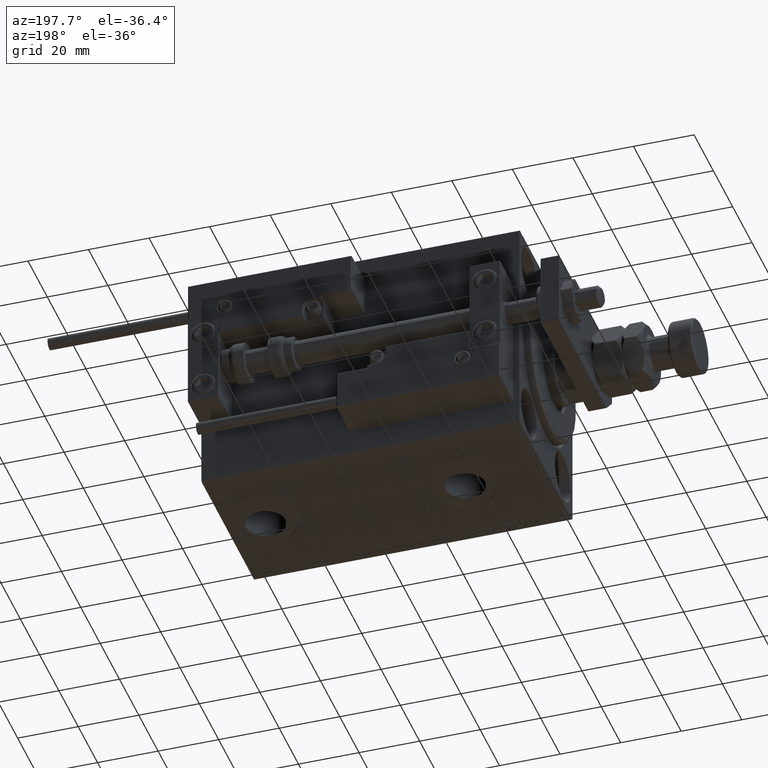
[diagram: clean part render]
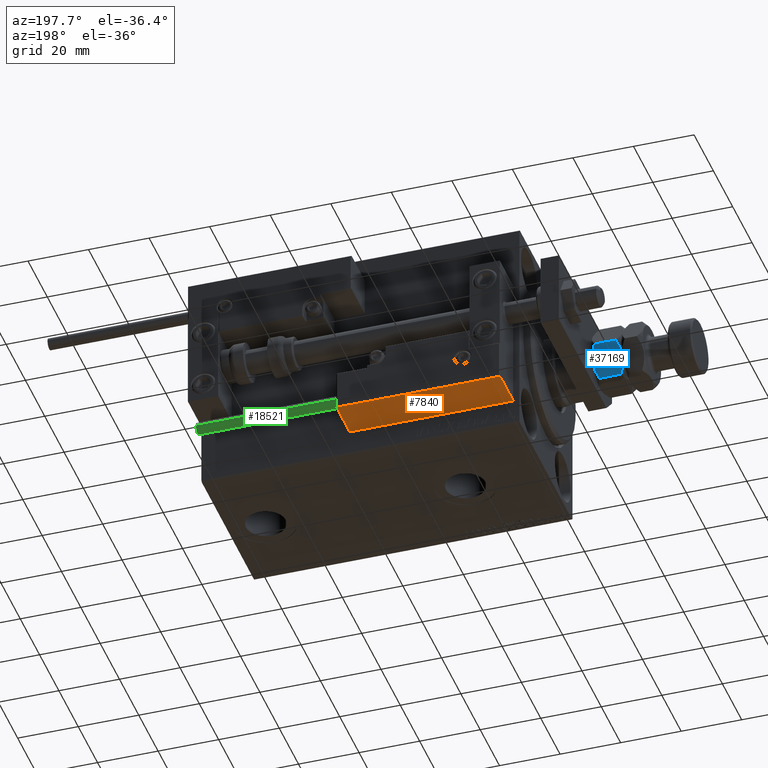
[diagram: same view with three faces highlighted in distinct colors, each labeled with its STEP entity id]
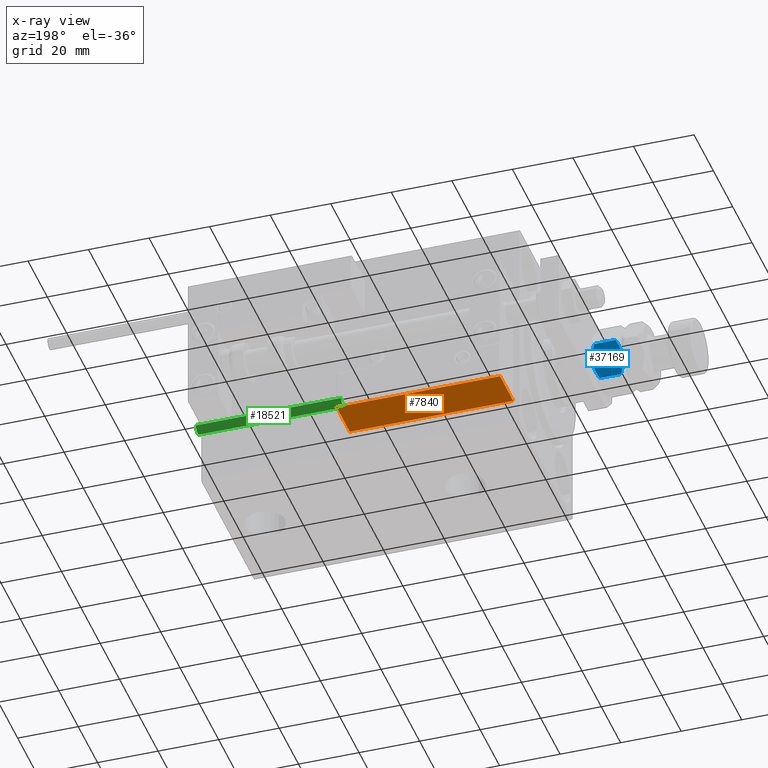
[diagram: x-ray of the same camera — body ghosted, the three highlighted faces saturated]
A machine part, auxiliary view with three faces highlighted in distinct colors.
The next image is the same camera in x-ray (body ghosted, the three faces saturated) — at least one of them is partly hidden behind the body in this view.
Their STEP definitions:

[orange] entity #7840 — the highlighted planar face has unit normal (0, 0, 1).
#490 = VECTOR ( 'NONE', #34159, 1000.000000000000000 ) ;
#786 = LINE ( 'NONE', #8889, #11468 ) ;
#1167 = CARTESIAN_POINT ( 'NONE',  ( 27.00000000000006395, 20.00000000000001776, 14.00000000000000000 ) ) ;
#1339 = CARTESIAN_POINT ( 'NONE',  ( -26.99999999999993605, 20.00000000000002132, 13.70000000000000107 ) ) ;
#4512 = VERTEX_POINT ( 'NONE', #1339 ) ;
#4844 = DIRECTION ( 'NONE',  ( 1.000000000000000000, -6.424901762877063495E-17, -0.000000000000000000 ) ) ;
#6474 = LINE ( 'NONE', #1167, #8087 ) ;
#6838 = FACE_OUTER_BOUND ( 'NONE', #19277, .T. ) ;
#6971 = EDGE_CURVE ( 'NONE', #4512, #36330, #39379, .T. ) ;
#7101 = CARTESIAN_POINT ( 'NONE',  ( -26.99999999999993605, 20.00000000000002132, 14.00000000000000000 ) ) ;
#7840 = ADVANCED_FACE ( 'NONE', ( #6838 ), #44751, .F. ) ;
#8087 = VECTOR ( 'NONE', #34983, 1000.000000000000000 ) ;
#8889 = CARTESIAN_POINT ( 'NONE',  ( 27.00000000000006395, 20.00000000000001776, 13.70000000000000107 ) ) ;
#9898 = EDGE_CURVE ( 'NONE', #4512, #12109, #786, .T. ) ;
#11413 = DIRECTION ( 'NONE',  ( -6.424901762877063495E-17, -1.000000000000000000, 0.000000000000000000 ) ) ;
#11468 = VECTOR ( 'NONE', #4844, 1000.000000000000000 ) ;
#12109 = VERTEX_POINT ( 'NONE', #19568 ) ;
#14036 = VECTOR ( 'NONE', #52006, 1000.000000000000000 ) ;
#14886 = ORIENTED_EDGE ( 'NONE', *, *, #16838, .T. ) ;
#14923 = CARTESIAN_POINT ( 'NONE',  ( 27.00000000000006395, 20.00000000000001776, 14.00000000000000000 ) ) ;
#16838 = EDGE_CURVE ( 'NONE', #40422, #36330, #50815, .T. ) ;
#17395 = CARTESIAN_POINT ( 'NONE',  ( -26.99999999999993605, 20.00000000000002132, 0.000000000000000000 ) ) ;
#19228 = DIRECTION ( 'NONE',  ( 1.000000000000000000, -6.424901762877063495E-17, 0.000000000000000000 ) ) ;
#19277 = EDGE_LOOP ( 'NONE', ( #30927, #34383, #35937, #14886 ) ) ;
#19568 = CARTESIAN_POINT ( 'NONE',  ( 27.00000000000006395, 20.00000000000001776, 13.70000000000000107 ) ) ;
#21525 = CARTESIAN_POINT ( 'NONE',  ( 27.00000000000006395, 20.00000000000001776, 0.000000000000000000 ) ) ;
#30927 = ORIENTED_EDGE ( 'NONE', *, *, #6971, .F. ) ;
#34159 = DIRECTION ( 'NONE',  ( -1.000000000000000000, 6.424901762877062263E-17, 0.000000000000000000 ) ) ;
#34383 = ORIENTED_EDGE ( 'NONE', *, *, #9898, .T. ) ;
#34419 = CARTESIAN_POINT ( 'NONE',  ( 27.00000000000006395, 20.00000000000001776, 0.000000000000000000 ) ) ;
#34983 = DIRECTION ( 'NONE',  ( -0.000000000000000000, -0.000000000000000000, -1.000000000000000000 ) ) ;
#35937 = ORIENTED_EDGE ( 'NONE', *, *, #44761, .T. ) ;
#36330 = VERTEX_POINT ( 'NONE', #17395 ) ;
#39379 = LINE ( 'NONE', #7101, #14036 ) ;
#40422 = VERTEX_POINT ( 'NONE', #21525 ) ;
#44751 = PLANE ( 'NONE',  #48428 ) ;
#44761 = EDGE_CURVE ( 'NONE', #12109, #40422, #6474, .T. ) ;
#48428 = AXIS2_PLACEMENT_3D ( 'NONE', #14923, #11413, #19228 ) ;
#50815 = LINE ( 'NONE', #34419, #490 ) ;
#52006 = DIRECTION ( 'NONE',  ( -0.000000000000000000, -0.000000000000000000, -1.000000000000000000 ) ) ;

[blue] entity #37169 — the highlighted planar face has unit normal (0, -0.866, 0.5).
#76 = CARTESIAN_POINT ( 'NONE',  ( -6.388382028668171841, 7.281321030665156790, 9.854124384224531852 ) ) ;
#344 = CARTESIAN_POINT ( 'NONE',  ( -0.7448681452486597410, 10.53960529043279770, 8.960394709567207627 ) ) ;
#3476 = CARTESIAN_POINT ( 'NONE',  ( -9.500000000000000000, 5.484827557301449552, 10.00000000000000000 ) ) ;
#5374 = CARTESIAN_POINT ( 'NONE',  ( -3.911732050025008789, 8.711215562523269895, 9.962294231267003752 ) ) ;
#5605 = VERTEX_POINT ( 'NONE', #34997 ) ;
#5642 = B_SPLINE_CURVE_WITH_KNOTS ( 'NONE', 3,
 ( #20293, #344, #40724, #53073, #18012, #5374, #16243, #46249 ),
 .UNSPECIFIED., .F., .F.,
 ( 4, 2, 2, 4 ),
 ( 2.544312669947217931E-07, 0.002843014744722341131, 0.004264394901450013070, 0.005685775058177684575 ),
 .UNSPECIFIED. ) ;
#6920 = AXIS2_PLACEMENT_3D ( 'NONE', #7558, #13171, #39183 ) ;
#7558 = CARTESIAN_POINT ( 'NONE',  ( 0.000000000000000000, 10.96965511460288667, 10.00000000000000000 ) ) ;
#7791 = DIRECTION ( 'NONE',  ( -0.000000000000000000, -0.000000000000000000, -1.000000000000000000 ) ) ;
#7820 = VECTOR ( 'NONE', #7791, 1000.000000000000000 ) ;
#7832 = LINE ( 'NONE', #12662, #28540 ) ;
#8176 = CARTESIAN_POINT ( 'NONE',  ( -8.755131854751338594, 5.914877381471542961, 1.039605290432796147 ) ) ;
#8416 = ORIENTED_EDGE ( 'NONE', *, *, #25047, .F. ) ;
#11674 = CARTESIAN_POINT ( 'NONE',  ( -5.588267949974988547, 7.743267109381076096, 0.03770576873300184734 ) ) ;
#12019 = CARTESIAN_POINT ( 'NONE',  ( -0.7440058743609621050, 10.54010312276192174, 1.040103122761827148 ) ) ;
#12289 = CARTESIAN_POINT ( 'NONE',  ( -1.509821400858455398, 10.09795932238899852, 0.6716369694512650534 ) ) ;
#12662 = CARTESIAN_POINT ( 'NONE',  ( 0.000000000000000000, 10.96965511460288667, 10.00000000000000000 ) ) ;
#12984 = EDGE_CURVE ( 'NONE', #32760, #22035, #36029, .T. ) ;
#13171 = DIRECTION ( 'NONE',  ( 0.4999999999999995004, -0.8660254037844390407, 0.000000000000000000 ) ) ;
#15977 = CARTESIAN_POINT ( 'NONE',  ( -4.749999999999995559, 8.227241335952170331, 0.000000000000000000 ) ) ;
#16243 = CARTESIAN_POINT ( 'NONE',  ( -4.333978297711722938, 8.467431577757031036, 9.999999999999998224 ) ) ;
#16323 = CARTESIAN_POINT ( 'NONE',  ( -3.923784602134044341, 8.704257018318687145, 8.233160247311796338E-16 ) ) ;
#16468 = ORIENTED_EDGE ( 'NONE', *, *, #40089, .T. ) ;
#16688 = FACE_OUTER_BOUND ( 'NONE', #43320, .T. ) ;
#16772 = CARTESIAN_POINT ( 'NONE',  ( -5.576215397865946777, 7.750225653585649077, 10.00000000000000000 ) ) ;
#17284 = CARTESIAN_POINT ( 'NONE',  ( -4.749999999999993783, 8.227241335952166779, 10.00000000000000000 ) ) ;
#18012 = CARTESIAN_POINT ( 'NONE',  ( -3.091726368128223879, 9.184646063703393537, 9.820258145287965590 ) ) ;
#20293 = CARTESIAN_POINT ( 'NONE',  ( -3.412354640325339130E-17, 10.96965511460288667, 8.530344885397118659 ) ) ;
#21124 = CARTESIAN_POINT ( 'NONE',  ( -9.500000000000000000, 5.484827557301450440, 1.469655114602887114 ) ) ;
#22035 = VERTEX_POINT ( 'NONE', #28004 ) ;
#22349 = VERTEX_POINT ( 'NONE', #26580 ) ;
#24147 = CARTESIAN_POINT ( 'NONE',  ( -4.749999999999995559, 8.227241335952170331, 0.000000000000000000 ) ) ;
#24583 = CARTESIAN_POINT ( 'NONE',  ( -6.809745054052670277, 7.038046974532860212, 0.2834621384311906689 ) ) ;
#25047 = EDGE_CURVE ( 'NONE', #5605, #52054, #5642, .T. ) ;
#26580 = CARTESIAN_POINT ( 'NONE',  ( -9.500000000000000000, 5.484827557301450440, 8.530344885397113330 ) ) ;
#28004 = CARTESIAN_POINT ( 'NONE',  ( 7.043584025308272669E-16, 10.96965511460288667, 1.469655114602882007 ) ) ;
#28074 = CARTESIAN_POINT ( 'NONE',  ( -6.408273631871772125, 7.269836608200945349, 0.1797418547120365750 ) ) ;
#28540 = VECTOR ( 'NONE', #37133, 1000.000000000000000 ) ;
#29778 = ORIENTED_EDGE ( 'NONE', *, *, #41537, .F. ) ;
#29895 = ORIENTED_EDGE ( 'NONE', *, *, #32467, .F. ) ;
#31837 = CARTESIAN_POINT ( 'NONE',  ( -7.993405681187618406, 6.354660192827338960, 0.6741748824712797683 ) ) ;
#32206 = CARTESIAN_POINT ( 'NONE',  ( -3.111617971331824162, 9.173161641239182984, 0.1458756157754679816 ) ) ;
#32264 = LINE ( 'NONE', #3476, #7820 ) ;
#32467 = EDGE_CURVE ( 'NONE', #50730, #32760, #45939, .T. ) ;
#32760 = VERTEX_POINT ( 'NONE', #41432 ) ;
#33178 = CARTESIAN_POINT ( 'NONE',  ( -8.755994125639032788, 5.914379549142415371, 8.959896877238170632 ) ) ;
#33759 = EDGE_CURVE ( 'NONE', #22349, #50730, #32264, .T. ) ;
#34997 = CARTESIAN_POINT ( 'NONE',  ( -3.412354640325339130E-17, 10.96965511460288667, 8.530344885397118659 ) ) ;
#36029 = B_SPLINE_CURVE_WITH_KNOTS ( 'NONE', 3,
 ( #24147, #16323, #32206, #12289, #12019, #44838 ),
 .UNSPECIFIED., .F., .F.,
 ( 4, 2, 4 ),
 ( 0.005685775058177695851, 0.008508623398180325398, 0.01133147173818295494 ),
 .UNSPECIFIED. ) ;
#36414 = CARTESIAN_POINT ( 'NONE',  ( -5.166021702288269957, 7.987051094147307850, 9.131015171401357655E-16 ) ) ;
#37133 = DIRECTION ( 'NONE',  ( -0.000000000000000000, -0.000000000000000000, -1.000000000000000000 ) ) ;
#37169 = ADVANCED_FACE ( 'NONE', ( #16688 ), #52458, .F. ) ;
#38254 = B_SPLINE_CURVE_WITH_KNOTS ( 'NONE', 3,
 ( #17284, #16772, #76, #46051, #33178, #49573 ),
 .UNSPECIFIED., .F., .F.,
 ( 4, 2, 4 ),
 ( 0.005685775058177684575, 0.008508623398180318459, 0.01133147173818295321 ),
 .UNSPECIFIED. ) ;
#39171 = CARTESIAN_POINT ( 'NONE',  ( -4.749999999999993783, 8.227241335952166779, 10.00000000000000000 ) ) ;
#39183 = DIRECTION ( 'NONE',  ( 0.8660254037844389297, 0.4999999999999994449, 0.000000000000000000 ) ) ;
#40089 = EDGE_CURVE ( 'NONE', #5605, #22035, #7832, .T. ) ;
#40717 = CARTESIAN_POINT ( 'NONE',  ( -9.500000000000000000, 5.484827557301450440, 1.469655114602887114 ) ) ;
#40724 = CARTESIAN_POINT ( 'NONE',  ( -1.506594318812380706, 10.09982247907699993, 9.325825117528726338 ) ) ;
#41432 = CARTESIAN_POINT ( 'NONE',  ( -4.749999999999995559, 8.227241335952170331, 0.000000000000000000 ) ) ;
#41537 = EDGE_CURVE ( 'NONE', #52054, #22349, #38254, .T. ) ;
#42533 = ORIENTED_EDGE ( 'NONE', *, *, #33759, .F. ) ;
#43320 = EDGE_LOOP ( 'NONE', ( #29895, #42533, #29778, #8416, #16468, #51002 ) ) ;
#44838 = CARTESIAN_POINT ( 'NONE',  ( 7.043584025308272669E-16, 10.96965511460288667, 1.469655114602882007 ) ) ;
#45939 = B_SPLINE_CURVE_WITH_KNOTS ( 'NONE', 3,
 ( #40717, #8176, #31837, #24583, #28074, #11674, #36414, #15977 ),
 .UNSPECIFIED., .F., .F.,
 ( 4, 2, 2, 4 ),
 ( 2.544312669946945821E-07, 0.002843014744722347636, 0.004264394901450021744, 0.005685775058177695851 ),
 .UNSPECIFIED. ) ;
#46051 = CARTESIAN_POINT ( 'NONE',  ( -7.990178599141542826, 6.356523349515339483, 9.328363030548731061 ) ) ;
#46249 = CARTESIAN_POINT ( 'NONE',  ( -4.749999999999993783, 8.227241335952166779, 10.00000000000000000 ) ) ;
#49573 = CARTESIAN_POINT ( 'NONE',  ( -9.500000000000000000, 5.484827557301450440, 8.530344885397113330 ) ) ;
#50730 = VERTEX_POINT ( 'NONE', #21124 ) ;
#51002 = ORIENTED_EDGE ( 'NONE', *, *, #12984, .F. ) ;
#52054 = VERTEX_POINT ( 'NONE', #39171 ) ;
#52458 = PLANE ( 'NONE',  #6920 ) ;
#53073 = CARTESIAN_POINT ( 'NONE',  ( -2.690254945947323506, 9.416435697371474234, 9.716537861568806278 ) ) ;

[green] entity #18521 — the highlighted cylindrical surface (edge-blend (fillet) strip) has radius 1.9 mm, axis along (-1, 0, 0).
#1762 = CIRCLE ( 'NONE', #8664, 1.899999999999999467 ) ;
#2486 = VERTEX_POINT ( 'NONE', #19136 ) ;
#2856 = ORIENTED_EDGE ( 'NONE', *, *, #42460, .T. ) ;
#4652 = ORIENTED_EDGE ( 'NONE', *, *, #34283, .F. ) ;
#8664 = AXIS2_PLACEMENT_3D ( 'NONE', #51163, #43915, #18640 ) ;
#9187 = ORIENTED_EDGE ( 'NONE', *, *, #29211, .T. ) ;
#9455 = ORIENTED_EDGE ( 'NONE', *, *, #35598, .F. ) ;
#11578 = LINE ( 'NONE', #49203, #38664 ) ;
#12368 = DIRECTION ( 'NONE',  ( -0.000000000000000000, -0.000000000000000000, -1.000000000000000000 ) ) ;
#12512 = VERTEX_POINT ( 'NONE', #16256 ) ;
#16256 = CARTESIAN_POINT ( 'NONE',  ( -1.899999999999999467, 0.000000000000000000, 0.000000000000000000 ) ) ;
#18294 = VECTOR ( 'NONE', #27304, 1000.000000000000000 ) ;
#18521 = ADVANCED_FACE ( 'NONE', ( #32275 ), #52173, .T. ) ;
#18640 = DIRECTION ( 'NONE',  ( 1.000000000000000000, 0.000000000000000000, 0.000000000000000000 ) ) ;
#19136 = CARTESIAN_POINT ( 'NONE',  ( -1.899999999999999467, 0.000000000000000000, 48.00000000000000000 ) ) ;
#21113 = CARTESIAN_POINT ( 'NONE',  ( 1.899999999999999467, 2.326828918379970872E-16, 48.00000000000000000 ) ) ;
#23801 = AXIS2_PLACEMENT_3D ( 'NONE', #48667, #31738, #52431 ) ;
#24336 = LINE ( 'NONE', #36432, #18294 ) ;
#24661 = DIRECTION ( 'NONE',  ( 0.000000000000000000, 0.000000000000000000, 1.000000000000000000 ) ) ;
#27304 = DIRECTION ( 'NONE',  ( -0.000000000000000000, -0.000000000000000000, -1.000000000000000000 ) ) ;
#27655 = VERTEX_POINT ( 'NONE', #45359 ) ;
#29211 = EDGE_CURVE ( 'NONE', #12512, #27655, #40265, .T. ) ;
#31738 = DIRECTION ( 'NONE',  ( -0.000000000000000000, -0.000000000000000000, -1.000000000000000000 ) ) ;
#32275 = FACE_OUTER_BOUND ( 'NONE', #41554, .T. ) ;
#34283 = EDGE_CURVE ( 'NONE', #2486, #35400, #1762, .T. ) ;
#35400 = VERTEX_POINT ( 'NONE', #21113 ) ;
#35598 = EDGE_CURVE ( 'NONE', #35400, #27655, #11578, .T. ) ;
#36432 = CARTESIAN_POINT ( 'NONE',  ( -1.899999999999999467, 0.000000000000000000, 48.00000000000000000 ) ) ;
#38664 = VECTOR ( 'NONE', #12368, 1000.000000000000000 ) ;
#40265 = CIRCLE ( 'NONE', #47966, 1.899999999999999467 ) ;
#41554 = EDGE_LOOP ( 'NONE', ( #9455, #4652, #2856, #9187 ) ) ;
#42460 = EDGE_CURVE ( 'NONE', #2486, #12512, #24336, .T. ) ;
#43915 = DIRECTION ( 'NONE',  ( 0.000000000000000000, 0.000000000000000000, 1.000000000000000000 ) ) ;
#45087 = CARTESIAN_POINT ( 'NONE',  ( 0.000000000000000000, 0.000000000000000000, 0.000000000000000000 ) ) ;
#45359 = CARTESIAN_POINT ( 'NONE',  ( 1.899999999999999467, 2.326828918379970872E-16, 0.000000000000000000 ) ) ;
#47966 = AXIS2_PLACEMENT_3D ( 'NONE', #45087, #24661, #53143 ) ;
#48667 = CARTESIAN_POINT ( 'NONE',  ( 0.000000000000000000, 0.000000000000000000, 48.00000000000000000 ) ) ;
#49203 = CARTESIAN_POINT ( 'NONE',  ( 1.899999999999999467, 2.326828918379970872E-16, 48.00000000000000000 ) ) ;
#51163 = CARTESIAN_POINT ( 'NONE',  ( 0.000000000000000000, 0.000000000000000000, 48.00000000000000000 ) ) ;
#52173 = CYLINDRICAL_SURFACE ( 'NONE', #23801, 1.899999999999999467 ) ;
#52431 = DIRECTION ( 'NONE',  ( -1.000000000000000000, 0.000000000000000000, 0.000000000000000000 ) ) ;
#53143 = DIRECTION ( 'NONE',  ( 1.000000000000000000, 0.000000000000000000, 0.000000000000000000 ) ) ;